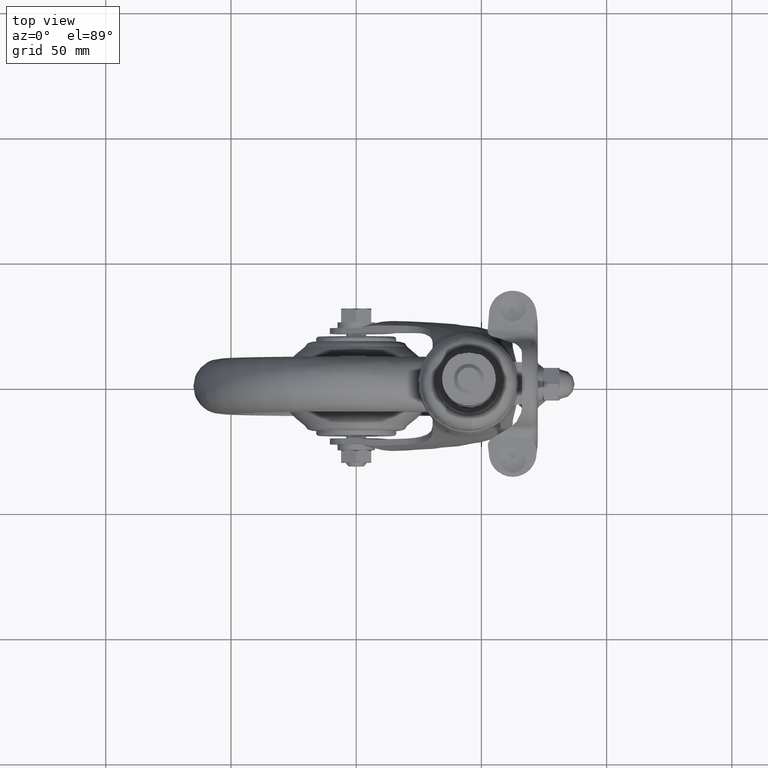
[diagram: clean part render]
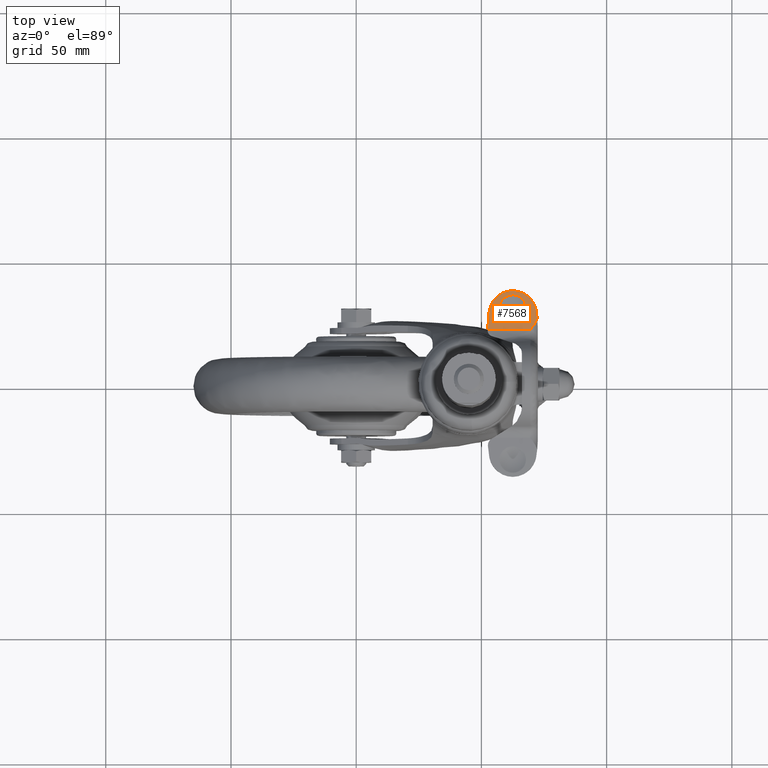
[diagram: same view with one face highlighted and labeled with its STEP entity id]
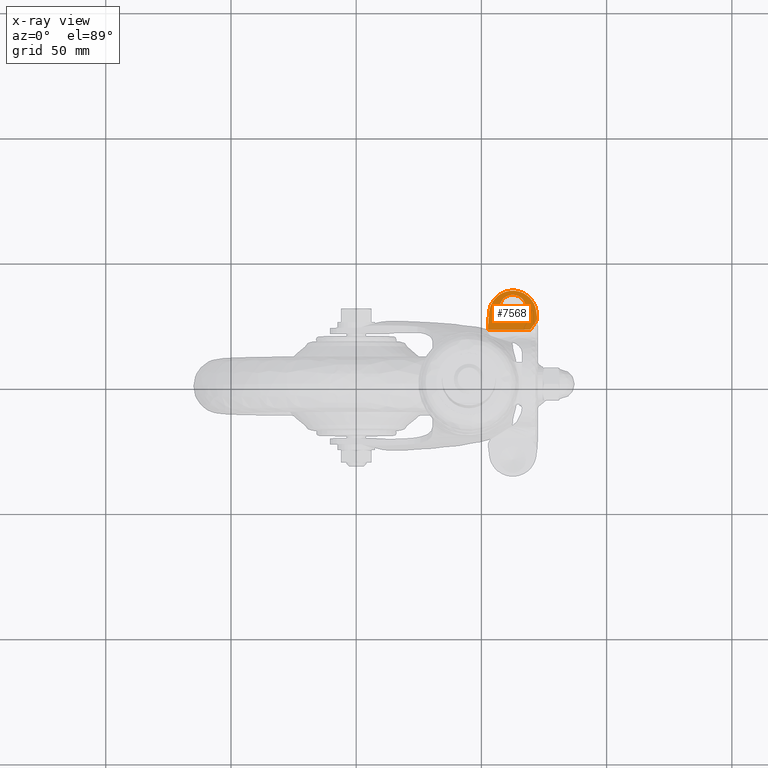
[diagram: x-ray of the same camera — body ghosted, the highlighted face saturated]
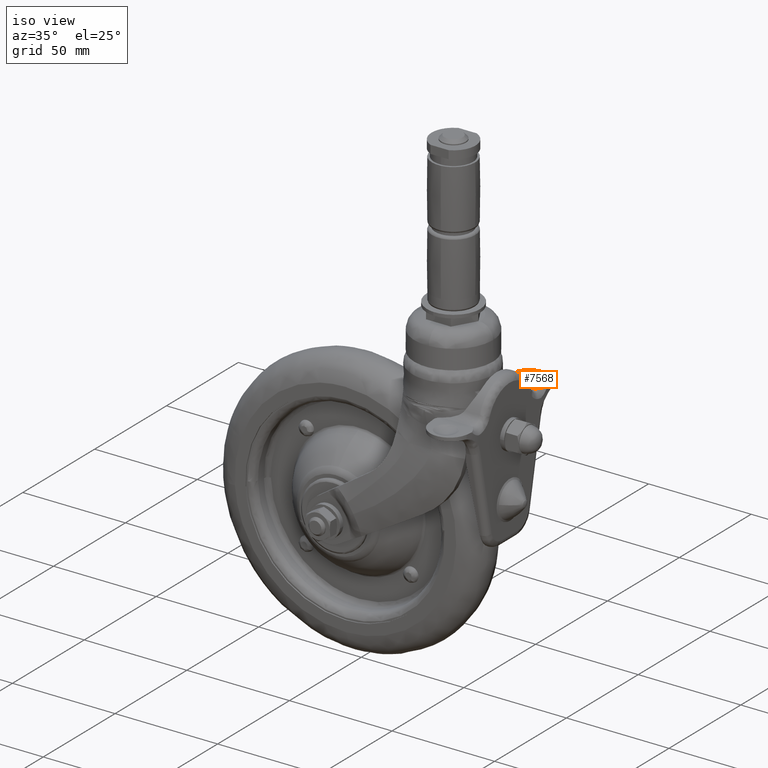
[diagram: same view with one face highlighted and labeled with its STEP entity id]
A machine part, top view. The second image highlights one B-rep face of the part: STEP entity #7568.
The next image is the same camera in x-ray: the body ghosted, the highlighted face saturated — about 0% of this face is hidden behind the body in this view.
A second angle (iso view) of the same face is appended — the face is thin or edge-on in the first view.
In plain terms, the highlighted face is a freeform B-spline surface patch.
Its self-contained STEP definition (entity closure, byte-faithful):
#1345=CARTESIAN_POINT('',(58.975796444563137,34.197149540413200,59.100000000000009));
#1346=VERTEX_POINT('',#1345);
#1360=CARTESIAN_POINT('',(57.208497345326769,30.250000000000000,59.100000000000001));
#1361=VERTEX_POINT('',#1360);
#1362=CARTESIAN_POINT('',(57.208497345326769,30.250000000000000,59.100000000000001));
#1363=CARTESIAN_POINT('',(57.208497345326776,32.619220548545968,59.100000000000001));
#1364=CARTESIAN_POINT('',(58.975796444563152,34.197149540413200,59.100000000000009));
#1372=(BOUNDED_CURVE()B_SPLINE_CURVE(2,(#1362,#1363,#1364),.UNSPECIFIED.,.F.,.U.)B_SPLINE_CURVE_WITH_KNOTS((3,3),(0.0,0.133534809489465),.UNSPECIFIED.)CURVE()GEOMETRIC_REPRESENTATION_ITEM()RATIONAL_B_SPLINE_CURVE((1.0,0.843554239299957,0.854236117404032))REPRESENTATION_ITEM(''));
#1373=EDGE_CURVE('',#1361,#1346,#1372,.T.);
#1375=CARTESIAN_POINT('',(67.791502654673238,30.250000000000000,59.100000000000001));
#1376=VERTEX_POINT('',#1375);
#1377=CARTESIAN_POINT('',(67.791502654673238,30.250000000000000,59.100000000000001));
#1378=CARTESIAN_POINT('',(67.791502654673238,24.958497345326766,59.100000000000001));
#1379=CARTESIAN_POINT('',(62.500000000000000,24.958497345326769,59.100000000000001));
#1380=CARTESIAN_POINT('',(57.208497345326769,24.958497345326766,59.100000000000001));
#1381=CARTESIAN_POINT('',(57.208497345326769,30.250000000000000,59.100000000000001));
#1389=(BOUNDED_CURVE()B_SPLINE_CURVE(2,(#1377,#1378,#1379,#1380,#1381),.UNSPECIFIED.,.F.,.U.)B_SPLINE_CURVE_WITH_KNOTS((3,2,3),(0.500000000000000,0.750000000000000,1.0),.UNSPECIFIED.)CURVE()GEOMETRIC_REPRESENTATION_ITEM()RATIONAL_B_SPLINE_CURVE((1.0,0.707106781186547,1.0,0.707106781186547,1.0))REPRESENTATION_ITEM(''));
#1390=EDGE_CURVE('',#1376,#1361,#1389,.T.);
#1392=CARTESIAN_POINT('',(65.771456408211606,34.409035124020797,59.100000000000009));
#1393=VERTEX_POINT('',#1392);
#1394=CARTESIAN_POINT('',(65.771456408211606,34.409035124020804,59.100000000000009));
#1395=CARTESIAN_POINT('',(67.791502654673238,32.820086493525089,59.100000000000001));
#1396=CARTESIAN_POINT('',(67.791502654673238,30.250000000000000,59.100000000000001));
#1404=(BOUNDED_CURVE()B_SPLINE_CURVE(2,(#1394,#1395,#1396),.UNSPECIFIED.,.F.,.U.)B_SPLINE_CURVE_WITH_KNOTS((3,3),(0.357040093227442,0.500000000000000),.UNSPECIFIED.)CURVE()GEOMETRIC_REPRESENTATION_ITEM()RATIONAL_B_SPLINE_CURVE((0.856576594576375,0.832512050976458,1.0))REPRESENTATION_ITEM(''));
#1405=EDGE_CURVE('',#1393,#1376,#1404,.T.);
#1456=CARTESIAN_POINT('',(58.975796444563152,34.197149540413200,59.100000000000009));
#1457=CARTESIAN_POINT('',(60.481487764003980,35.541502654673231,59.099999999999987));
#1458=CARTESIAN_POINT('',(62.500000000000000,35.541502654673231,59.100000000000001));
#1459=CARTESIAN_POINT('',(64.331739177630041,35.541502654673224,59.099999999999994));
#1460=CARTESIAN_POINT('',(65.771456408211606,34.409035124020797,59.100000000000009));
#1468=(BOUNDED_CURVE()B_SPLINE_CURVE(2,(#1456,#1457,#1458,#1459,#1460),.UNSPECIFIED.,.F.,.U.)B_SPLINE_CURVE_WITH_KNOTS((3,2,3),(0.133534809489465,0.250000000000000,0.357040093227442),.UNSPECIFIED.)CURVE()GEOMETRIC_REPRESENTATION_ITEM()RATIONAL_B_SPLINE_CURVE((0.854236117404032,0.863552541886590,1.0,0.874594730210090,0.856576594576376))REPRESENTATION_ITEM(''));
#1469=EDGE_CURVE('',#1346,#1393,#1468,.T.);
#6170=CARTESIAN_POINT('',(69.500000000000000,21.563858999999852,59.100000000000001));
#6171=VERTEX_POINT('',#6170);
#6172=CARTESIAN_POINT('',(72.270637316106288,26.245326163023300,59.100000000000001));
#6173=VERTEX_POINT('',#6172);
#6174=CARTESIAN_POINT('',(69.500000000000000,21.563858999999852,59.100000000000001));
#6175=CARTESIAN_POINT('',(69.534749401311302,21.608720358972430,59.100000000000001));
#6176=CARTESIAN_POINT('',(69.569902581501111,21.654102826102019,59.100000000000001));
#6177=CARTESIAN_POINT('',(69.639829779613365,21.744444688209530,59.100000000000001));
#6178=CARTESIAN_POINT('',(69.744671280074570,21.879993271682569,59.100000000000023));
#6179=CARTESIAN_POINT('',(69.849216967487990,22.015756620843462,59.100000000000009));
#6180=CARTESIAN_POINT('',(70.057518694321431,22.287856618063689,59.100000000000009));
#6181=CARTESIAN_POINT('',(70.195334564102751,22.470020349793600,59.100000000000009));
#6182=CARTESIAN_POINT('',(70.602442918507563,23.021113960115262,59.099999999999987));
#6183=CARTESIAN_POINT('',(70.865451851136271,23.394605812481721,59.100000000000023));
#6184=CARTESIAN_POINT('',(71.356937638665840,24.166660437787840,59.100000000000001));
#6185=CARTESIAN_POINT('',(71.583321178409193,24.561985781421910,59.100000000000023));
#6186=CARTESIAN_POINT('',(71.878716870516385,25.175560811814890,59.100000000000009));
#6187=CARTESIAN_POINT('',(71.969821918523706,25.383541414576559,59.100000000000009));
#6188=CARTESIAN_POINT('',(72.134374557035841,25.807792764862640,59.100000000000023));
#6189=CARTESIAN_POINT('',(72.207840262889462,26.024055007263112,59.100000000000001));
#6190=CARTESIAN_POINT('',(72.270637316106288,26.245326163023300,59.100000000000001));
#6191=B_SPLINE_CURVE_WITH_KNOTS('',3,(#6174,#6175,#6176,#6177,#6178,#6179,#6180,#6181,#6182,#6183,#6184,#6185,#6186,#6187,#6188,#6189,#6190),.UNSPECIFIED.,.F.,.U.,(4,2,1,2,2,2,2,2,4),(0.0,0.031250000000001,0.062500000000002,0.125000000000004,0.250000000000003,0.500000000000001,0.749999999999999,0.874999999999999,1.0),.UNSPECIFIED.);
#6192=EDGE_CURVE('',#6171,#6173,#6191,.T.);
#7502=CARTESIAN_POINT('',(73.258172805744010,20.785332109443420,59.100000000000001));
#7503=CARTESIAN_POINT('',(51.512624148301292,20.785332109443420,59.100000000000001));
#7504=CARTESIAN_POINT('',(73.258172805744010,37.928529259522307,59.100000000000001));
#7505=CARTESIAN_POINT('',(51.512624148301292,37.928529259522307,59.100000000000001));
#7506=B_SPLINE_SURFACE_WITH_KNOTS('',1,1,((#7502,#7504),(#7503,#7505)),.UNSPECIFIED.,.F.,.F.,.U.,(2,2),(2,2),(0.0,21.745548657442718),(0.0,17.143197150078880),.UNSPECIFIED.);
#7507=CARTESIAN_POINT('',(52.500205242389796,21.563858999999852,59.100000000000001));
#7508=VERTEX_POINT('',#7507);
#7509=CARTESIAN_POINT('',(52.500205242389796,21.563858999999852,59.100000000000001));
#7510=CARTESIAN_POINT('',(69.500000000000000,21.563858999999852,59.100000000000001));
#7511=QUASI_UNIFORM_CURVE('',1,(#7509,#7510),.UNSPECIFIED.,.F.,.U.);
#7512=EDGE_CURVE('',#7508,#6171,#7511,.T.);
#7513=ORIENTED_EDGE('',*,*,#7512,.T.);
#7514=ORIENTED_EDGE('',*,*,#6192,.T.);
#7515=CARTESIAN_POINT('',(71.866769447880898,29.235443190482300,59.100000000000001));
#7516=VERTEX_POINT('',#7515);
#7517=CARTESIAN_POINT('',(71.866769447880813,29.235443190482300,59.100000000000001));
#7518=CARTESIAN_POINT('',(72.118684147054381,27.747135457692892,59.100000000000001));
#7519=CARTESIAN_POINT('',(72.270637316106217,26.245326163023289,59.100000000000001));
#7527=(BOUNDED_CURVE()B_SPLINE_CURVE(2,(#7517,#7518,#7519),.UNSPECIFIED.,.F.,.U.)CURVE()GEOMETRIC_REPRESENTATION_ITEM()QUASI_UNIFORM_CURVE()RATIONAL_B_SPLINE_CURVE((1.0,0.999441664064305,1.0))REPRESENTATION_ITEM(''));
#7528=EDGE_CURVE('',#7516,#6173,#7527,.T.);
#7529=ORIENTED_EDGE('',*,*,#7528,.F.);
#7530=CARTESIAN_POINT('',(53.133230552119308,29.235443190482350,59.100000000000001));
#7531=VERTEX_POINT('',#7530);
#7532=CARTESIAN_POINT('',(53.133230552119208,29.235443190482371,59.100000000000001));
#7533=CARTESIAN_POINT('',(54.472868542480398,37.150000000000006,59.100000000000001));
#7534=CARTESIAN_POINT('',(62.500000000000000,37.150000000000013,59.100000000000001));
#7535=CARTESIAN_POINT('',(70.527131457519687,37.150000000000006,59.100000000000001));
#7536=CARTESIAN_POINT('',(71.866769447880813,29.235443190482290,59.100000000000001));
#7544=(BOUNDED_CURVE()B_SPLINE_CURVE(2,(#7532,#7533,#7534,#7535,#7536),.UNSPECIFIED.,.F.,.U.)B_SPLINE_CURVE_WITH_KNOTS((3,2,3),(0.0,0.500000000000000,1.0),.UNSPECIFIED.)CURVE()GEOMETRIC_REPRESENTATION_ITEM()RATIONAL_B_SPLINE_CURVE((1.0,0.763835308457550,1.0,0.763835308457550,1.0))REPRESENTATION_ITEM(''));
#7545=EDGE_CURVE('',#7531,#7516,#7544,.T.);
#7546=ORIENTED_EDGE('',*,*,#7545,.F.);
#7547=CARTESIAN_POINT('',(52.500205242389747,21.563858999999852,59.100000000000001));
#7548=CARTESIAN_POINT('',(52.488558103717288,25.426729394818711,59.100000000000009));
#7549=CARTESIAN_POINT('',(53.133230552119208,29.235443190482378,59.100000000000001));
#7557=(BOUNDED_CURVE()B_SPLINE_CURVE(2,(#7547,#7548,#7549),.UNSPECIFIED.,.F.,.U.)CURVE()GEOMETRIC_REPRESENTATION_ITEM()QUASI_UNIFORM_CURVE()RATIONAL_B_SPLINE_CURVE((1.0,0.996360392218367,1.0))REPRESENTATION_ITEM(''));
#7558=EDGE_CURVE('',#7508,#7531,#7557,.T.);
#7559=ORIENTED_EDGE('',*,*,#7558,.F.);
#7560=EDGE_LOOP('',(#7513,#7514,#7529,#7546,#7559));
#7561=FACE_OUTER_BOUND('',#7560,.T.);
#7562=ORIENTED_EDGE('',*,*,#1390,.T.);
#7563=ORIENTED_EDGE('',*,*,#1373,.T.);
#7564=ORIENTED_EDGE('',*,*,#1469,.T.);
#7565=ORIENTED_EDGE('',*,*,#1405,.T.);
#7566=EDGE_LOOP('',(#7562,#7563,#7564,#7565));
#7567=FACE_BOUND('',#7566,.T.);
#7568=ADVANCED_FACE('',(#7561,#7567),#7506,.F.);